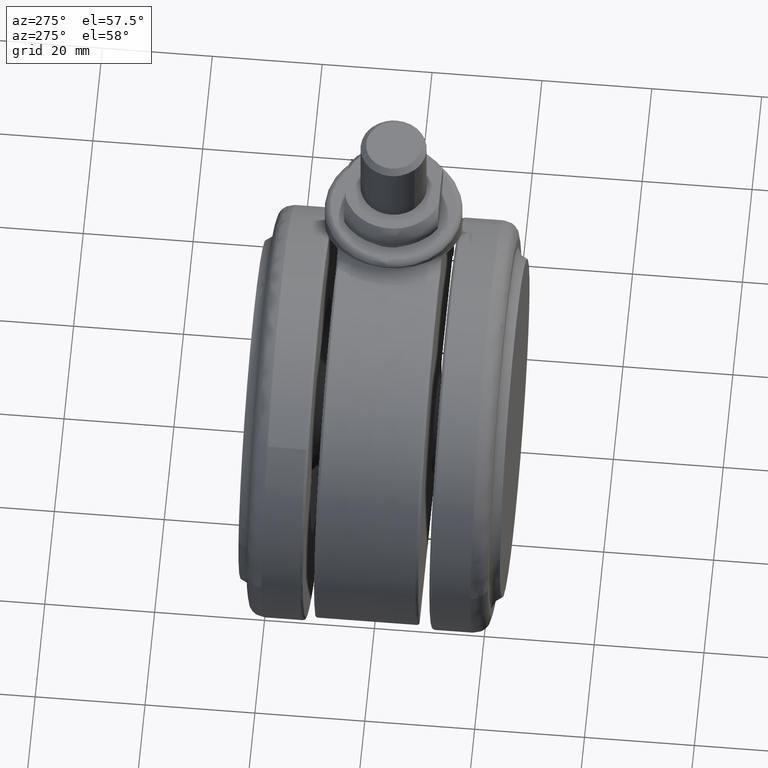
[diagram: clean part render]
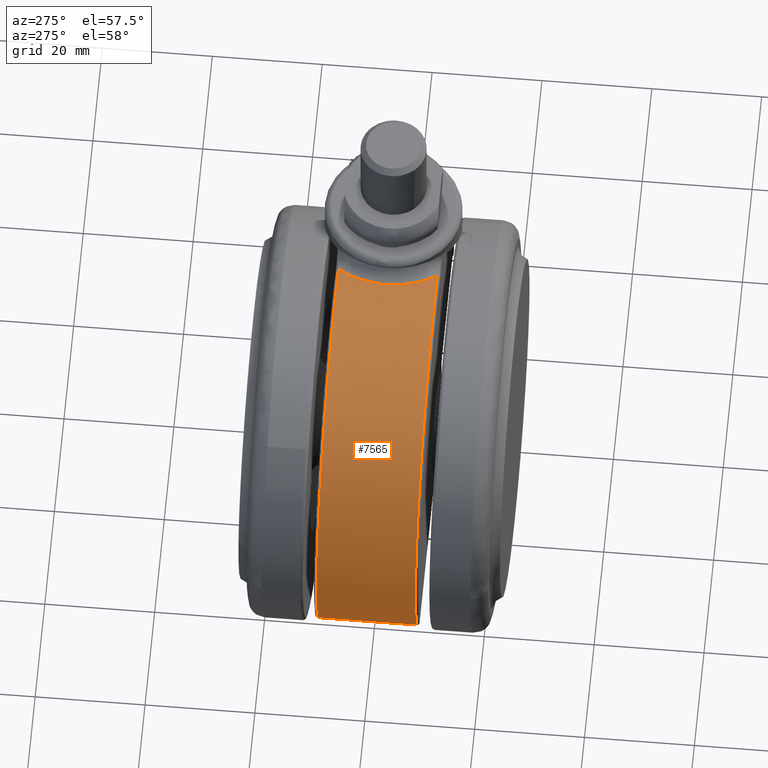
[diagram: same view with one face highlighted and labeled with its STEP entity id]
A machine part, auxiliary view. The second image highlights one B-rep face of the part: STEP entity #7565.
In plain terms, the highlighted face is a freeform B-spline surface patch.
Its self-contained STEP definition (entity closure, byte-faithful):
#7022=CARTESIAN_POINT('',(-54.869513614197501,9.000000000000199,-54.297355554936097));
#7023=VERTEX_POINT('',#7022);
#7034=CARTESIAN_POINT('',(-11.805838924915539,8.999999999988731,-3.906206478754365));
#7035=VERTEX_POINT('',#7034);
#7036=CARTESIAN_POINT('',(-11.805838924915539,8.999999999988731,-3.906206478754365));
#7037=CARTESIAN_POINT('',(-13.510176487835700,8.999999999989333,-3.524493917913257));
#7038=CARTESIAN_POINT('',(-17.024777176299349,8.999999999990601,-2.991869997399534));
#7039=CARTESIAN_POINT('',(-21.959508734016989,8.999999999991962,-2.949479437860025));
#7040=CARTESIAN_POINT('',(-26.117703946237739,8.999999999993925,-3.444394332981466));
#7041=CARTESIAN_POINT('',(-29.741211147199799,8.999999999994513,-4.230764293312907));
#7042=CARTESIAN_POINT('',(-32.873746686031637,8.999999999995797,-5.223366329254900));
#7043=CARTESIAN_POINT('',(-36.535825183936723,8.999999999996710,-6.762532558769833));
#7044=CARTESIAN_POINT('',(-39.834361620837747,8.999999999998090,-8.580608312824579));
#7045=CARTESIAN_POINT('',(-43.250522967103592,8.999999999998854,-10.998658296909801));
#7046=CARTESIAN_POINT('',(-46.051154737897420,8.999999999999300,-13.432539760626300));
#7047=CARTESIAN_POINT('',(-48.800959484881353,9.000000000000417,-16.374763213507102));
#7048=CARTESIAN_POINT('',(-51.640468089644337,9.000000000001059,-20.142802409807839));
#7049=CARTESIAN_POINT('',(-53.982953061812729,9.000000000001629,-24.369866086910790));
#7050=CARTESIAN_POINT('',(-55.729349985962372,9.000000000001947,-28.865660789186670));
#7051=CARTESIAN_POINT('',(-56.671324972291750,9.000000000002055,-32.400181517686953));
#7052=CARTESIAN_POINT('',(-57.332792704877939,9.000000000002110,-36.316787831074819));
#7053=CARTESIAN_POINT('',(-57.573010909975586,9.000000000001748,-39.968684032768792));
#7054=CARTESIAN_POINT('',(-57.398920614337463,9.000000000001782,-43.885249259860139));
#7055=CARTESIAN_POINT('',(-56.762320871225697,9.000000000001148,-48.557653145916042));
#7056=CARTESIAN_POINT('',(-55.765599117536041,9.000000000000556,-52.033616679061147));
#7057=CARTESIAN_POINT('',(-54.869513614197501,9.000000000000199,-54.297355554936097));
#7058=B_SPLINE_CURVE_WITH_KNOTS('',3,(#7036,#7037,#7038,#7039,#7040,#7041,#7042,#7043,#7044,#7045,#7046,#7047,#7048,#7049,#7050,#7051,#7052,#7053,#7054,#7055,#7056,#7057),.UNSPECIFIED.,.F.,.U.,(4,1,1,1,1,1,1,1,1,1,1,1,1,1,1,1,1,1,1,4),(0.000000087523389,5.239675830871931,10.638206746290891,14.766471459745990,17.783285357036551,21.752778595841662,24.610805443164860,29.691772901626191,33.026120749186347,37.154424269596632,40.806238762785149,45.093334682683277,51.285726984951147,55.255199811257683,59.542260567147977,62.241512716426463,67.163683799394931,70.498046525089748,73.991194209088377,81.295033708237256),.UNSPECIFIED.);
#7059=EDGE_CURVE('',#7035,#7023,#7058,.T.);
#7478=CARTESIAN_POINT('',(-54.290245703835041,9.450000000002124,-55.679889642900982));
#7479=CARTESIAN_POINT('',(-54.290245703835041,-9.461250000000732,-55.679889642900982));
#7480=CARTESIAN_POINT('',(-87.599473466367627,9.450000000002126,19.563187286606372));
#7481=CARTESIAN_POINT('',(-87.599473466367627,-9.461250000000732,19.563187286606372));
#7482=CARTESIAN_POINT('',(-8.959982839918620,9.450000000002124,-4.661919399818615));
#7483=CARTESIAN_POINT('',(-8.959982839918620,-9.461250000000732,-4.661919399818615));
#7491=(BOUNDED_SURFACE()B_SPLINE_SURFACE(1,2,((#7478,#7480,#7482),(#7479,#7481,#7483)),.UNSPECIFIED.,.F.,.F.,.U.)B_SPLINE_SURFACE_WITH_KNOTS((2,2),(3,3),(0.0,18.911250000002859),(0.0,96.483242102152772),.UNSPECIFIED.)GEOMETRIC_REPRESENTATION_ITEM()RATIONAL_B_SPLINE_SURFACE(((1.0,0.414693242656239,1.0),(1.0,0.414693242656239,1.0)))REPRESENTATION_ITEM('')SURFACE());
#7492=ORIENTED_EDGE('',*,*,#7059,.T.);
#7493=CARTESIAN_POINT('',(-54.869513614197501,-8.999999999999799,-54.297355554936097));
#7494=VERTEX_POINT('',#7493);
#7495=CARTESIAN_POINT('',(-54.869513614197501,9.000000000000199,-54.297355554936097));
#7496=CARTESIAN_POINT('',(-54.869513614197501,-8.999999999999799,-54.297355554936097));
#7497=QUASI_UNIFORM_CURVE('',1,(#7495,#7496),.UNSPECIFIED.,.F.,.U.);
#7498=EDGE_CURVE('',#7023,#7494,#7497,.T.);
#7499=ORIENTED_EDGE('',*,*,#7498,.T.);
#7500=CARTESIAN_POINT('',(-11.805838924906540,-9.000000000000659,-3.906206478756380));
#7501=VERTEX_POINT('',#7500);
#7502=CARTESIAN_POINT('',(-54.869513614197501,-8.999999999999799,-54.297355554936097));
#7503=CARTESIAN_POINT('',(-55.668070010859857,-8.999999999999819,-52.279644327870102));
#7504=CARTESIAN_POINT('',(-56.898315869721117,-8.999999999999638,-48.156036000546983));
#7505=CARTESIAN_POINT('',(-57.557644421482678,-8.999999999999783,-42.617938474394258));
#7506=CARTESIAN_POINT('',(-57.467540251193952,-8.999999999999620,-37.319198736489490));
#7507=CARTESIAN_POINT('',(-56.797202443648857,-8.999999999999661,-32.696492754332837));
#7508=CARTESIAN_POINT('',(-55.290598325269492,-8.999999999999767,-27.447390194735458));
#7509=CARTESIAN_POINT('',(-53.075215393671371,-8.999999999999576,-22.504218064029640));
#7510=CARTESIAN_POINT('',(-50.030484976979778,-9.000000000000078,-17.836991624041019));
#7511=CARTESIAN_POINT('',(-46.437486059160740,-8.999999999999725,-13.721573705353460));
#7512=CARTESIAN_POINT('',(-42.851534707051307,-9.000000000000020,-10.644952836880220));
#7513=CARTESIAN_POINT('',(-39.012103731690530,-9.000000000000329,-8.094809848767957));
#7514=CARTESIAN_POINT('',(-35.767542237440111,-8.999999999998714,-6.403757282881178));
#7515=CARTESIAN_POINT('',(-32.076512327923624,-9.000000000001149,-4.934508379533646));
#7516=CARTESIAN_POINT('',(-27.849589980835560,-8.999999999999412,-3.712254403164411));
#7517=CARTESIAN_POINT('',(-23.279965547227579,-9.000000000001240,-3.040499795471940));
#7518=CARTESIAN_POINT('',(-17.717064334014360,-8.999999999998920,-2.935173943555298));
#7519=CARTESIAN_POINT('',(-14.129928553565550,-9.000000000001583,-3.385508724429284));
#7520=CARTESIAN_POINT('',(-11.805838924906540,-9.000000000000659,-3.906206478756380));
#7521=B_SPLINE_CURVE_WITH_KNOTS('',3,(#7502,#7503,#7504,#7505,#7506,#7507,#7508,#7509,#7510,#7511,#7512,#7513,#7514,#7515,#7516,#7517,#7518,#7519,#7520),.UNSPECIFIED.,.F.,.U.,(4,1,1,1,1,1,1,1,1,1,1,1,1,1,1,1,4),(0.000000087131383,6.509949868620765,12.861113670524210,16.671829399634991,22.387894549360791,26.833718668321179,33.026120748967081,38.583388647518362,43.505539289303250,49.380373481193203,52.714733648444110,57.319348474413736,60.336157834881433,64.623213621697175,70.498046525051350,74.150001071777154,81.295033708247118),.UNSPECIFIED.);
#7522=EDGE_CURVE('',#7494,#7501,#7521,.T.);
#7523=ORIENTED_EDGE('',*,*,#7522,.T.);
#7524=CARTESIAN_POINT('',(-11.805838924906540,-9.000000000000659,-3.906206478756380));
#7525=CARTESIAN_POINT('',(-12.046837819324020,-8.679333460865726,-3.852241487162057));
#7526=CARTESIAN_POINT('',(-12.274629916372310,-8.348406739262936,-3.803725052018232));
#7527=CARTESIAN_POINT('',(-12.596396211965491,-7.836730204240366,-3.737945712371875));
#7528=CARTESIAN_POINT('',(-12.700242990331390,-7.663723634669585,-3.717206441425792));
#7529=CARTESIAN_POINT('',(-12.899969609063190,-7.314949680800781,-3.678132545718596));
#7530=CARTESIAN_POINT('',(-12.996027153543061,-7.138905429500713,-3.659761327929779));
#7531=CARTESIAN_POINT('',(-13.457584118106761,-6.250559327186276,-3.573208490142068));
#7532=CARTESIAN_POINT('',(-13.767262796532190,-5.514052647632648,-3.520714461542935));
#7533=CARTESIAN_POINT('',(-14.143547321501590,-4.371534329087205,-3.459912189358102));
#7534=CARTESIAN_POINT('',(-14.254197450876520,-3.984368706092516,-3.442678350801160));
#7535=CARTESIAN_POINT('',(-14.397467641647291,-3.393947969731136,-3.420841907345974));
#7536=CARTESIAN_POINT('',(-14.441196921566039,-3.196480827272744,-3.414270720347218));
#7537=CARTESIAN_POINT('',(-14.520520065870750,-2.801217501960681,-3.402467635704158));
#7538=CARTESIAN_POINT('',(-14.556152165901990,-2.603264278831990,-3.397229963784580));
#7539=CARTESIAN_POINT('',(-14.714446178909601,-1.611914748185788,-3.374142455398909));
#7540=CARTESIAN_POINT('',(-14.777915213004491,-0.813802312984008,-3.365382312462376));
#7541=CARTESIAN_POINT('',(-14.778758301933371,0.390867584008307,-3.365263765432439));
#7542=CARTESIAN_POINT('',(-14.763233457465709,0.793681064458942,-3.367436019016509));
#7543=CARTESIAN_POINT('',(-14.699632835871160,1.601897842648785,-3.376461112277244));
#7544=CARTESIAN_POINT('',(-14.651827623926209,2.003759339404850,-3.383276020934334));
#7545=CARTESIAN_POINT('',(-14.556246461530810,2.602831266752149,-3.397215952330652));
#7546=CARTESIAN_POINT('',(-14.520400413534921,2.801920909281932,-3.402485097922631));
#7547=CARTESIAN_POINT('',(-14.440691787956879,3.198889853889313,-3.414346227397438));
#7548=CARTESIAN_POINT('',(-14.396794881122650,3.396849500766859,-3.420943738079435));
#7549=CARTESIAN_POINT('',(-14.253918691050460,3.985257139860305,-3.442722265302993));
#7550=CARTESIAN_POINT('',(-14.143551170761519,4.371460346495812,-3.459912361665989));
#7551=CARTESIAN_POINT('',(-13.767941109202329,5.512117496307304,-3.520603269368275));
#7552=CARTESIAN_POINT('',(-13.458488544159250,6.248747220371286,-3.573041787671060));
#7553=CARTESIAN_POINT('',(-12.996149729292890,7.138687323329410,-3.659737618749455));
#7554=CARTESIAN_POINT('',(-12.899882036968830,7.315122750676706,-3.678148654392365));
#7555=CARTESIAN_POINT('',(-12.699604568017360,7.664818264255987,-3.717332367762237));
#7556=CARTESIAN_POINT('',(-12.595655250218060,7.837937945063278,-3.738095350183076));
#7557=CARTESIAN_POINT('',(-12.274290881585189,8.348886715745355,-3.803798054279779));
#7558=CARTESIAN_POINT('',(-12.046712899385790,8.679499675919141,-3.852269459503786));
#7559=CARTESIAN_POINT('',(-11.805838924915539,8.999999999988738,-3.906206478754307));
#7560=B_SPLINE_CURVE_WITH_KNOTS('',3,(#7524,#7525,#7526,#7527,#7528,#7529,#7530,#7531,#7532,#7533,#7534,#7535,#7536,#7537,#7538,#7539,#7540,#7541,#7542,#7543,#7544,#7545,#7546,#7547,#7548,#7549,#7550,#7551,#7552,#7553,#7554,#7555,#7556,#7557,#7558,#7559),.UNSPECIFIED.,.F.,.U.,(4,2,2,2,2,2,2,2,2,2,2,2,2,2,2,2,2,4),(0.0,0.062500000000000,0.093750000000000,0.124999999999999,0.249999999999999,0.312499999999999,0.343749999999999,0.374999999999999,0.499999999999999,0.562499999999999,0.624999999999999,0.656249999999999,0.687499999999999,0.749999999999999,0.875000000000000,0.906250000000000,0.937500000000000,1.0),.UNSPECIFIED.);
#7561=EDGE_CURVE('',#7501,#7035,#7560,.T.);
#7562=ORIENTED_EDGE('',*,*,#7561,.T.);
#7563=EDGE_LOOP('',(#7492,#7499,#7523,#7562));
#7564=FACE_OUTER_BOUND('',#7563,.T.);
#7565=ADVANCED_FACE('',(#7564),#7491,.T.);